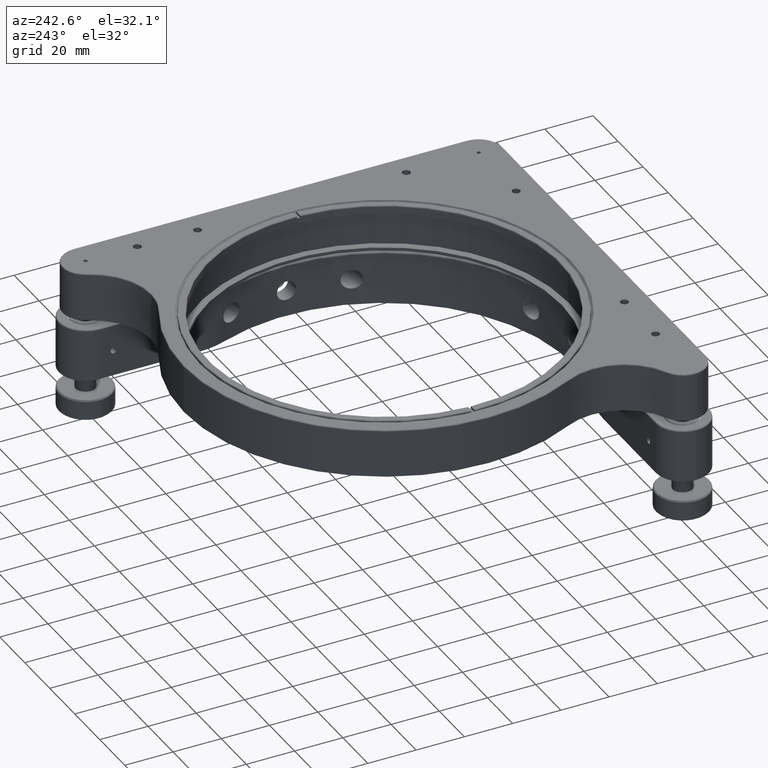
[diagram: clean part render]
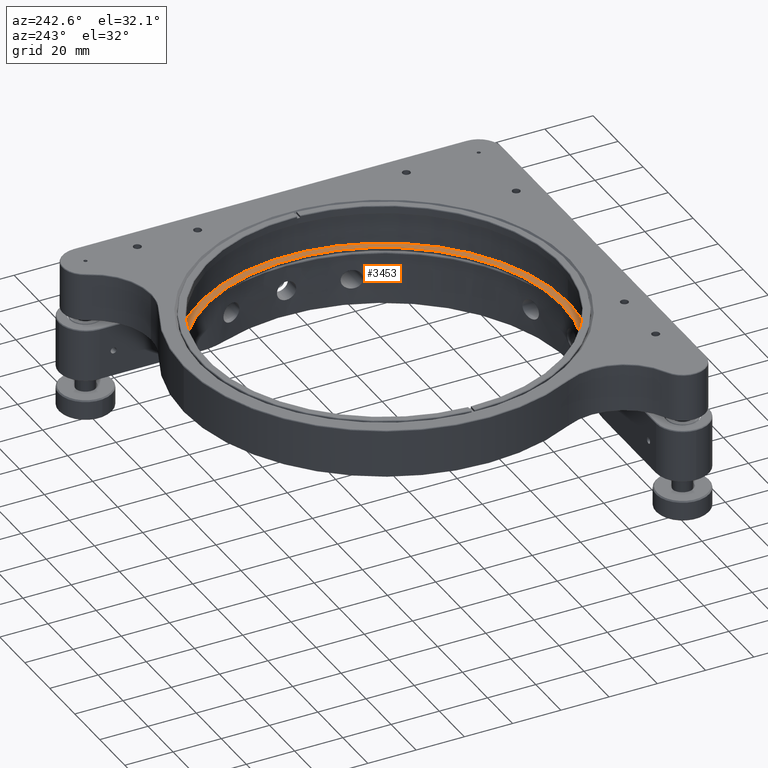
[diagram: same view with one face highlighted and labeled with its STEP entity id]
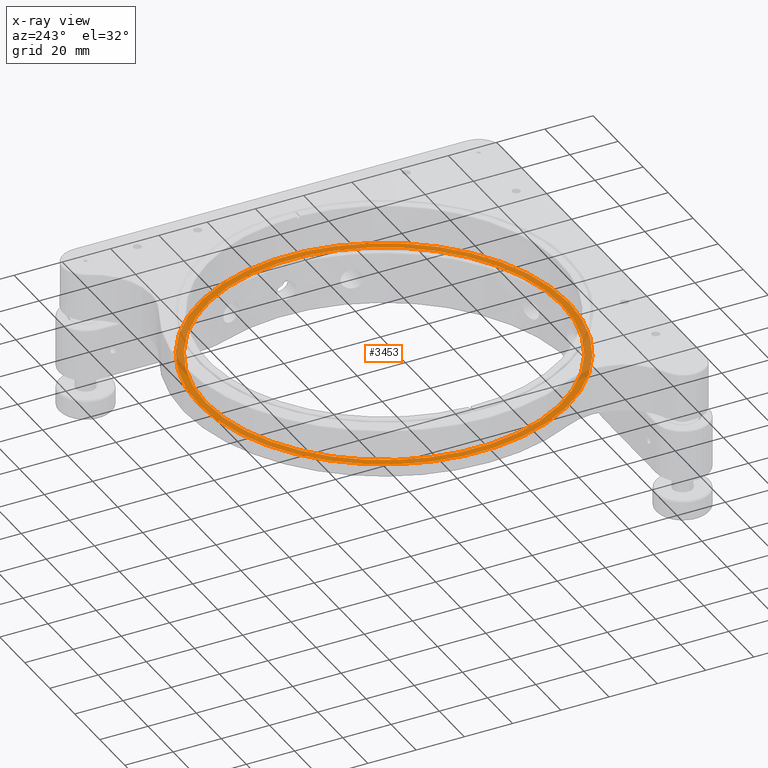
[diagram: x-ray of the same camera — body ghosted, the highlighted face saturated]
A machine part, auxiliary view. The second image highlights one B-rep face of the part: STEP entity #3453.
The next image is the same camera in x-ray: the body ghosted, the highlighted face saturated — about 15% of this face is hidden behind the body in this view.
In plain terms, the highlighted planar face has unit normal (0, 0, 1).
Its self-contained STEP definition (entity closure, byte-faithful):
#137 = DIRECTION ( 'NONE',  ( -6.383782391594643205E-16, 1.000000000000000000, 0.000000000000000000 ) ) ;
#279 = AXIS2_PLACEMENT_3D ( 'NONE', #12239, #16856, #137 ) ;
#430 = CIRCLE ( 'NONE', #11702, 73.70000000000038654 ) ;
#1478 = AXIS2_PLACEMENT_3D ( 'NONE', #4620, #10862, #13497 ) ;
#2557 = EDGE_CURVE ( 'NONE', #17104, #16991, #15584, .T. ) ;
#2600 = VERTEX_POINT ( 'NONE', #17078 ) ;
#3080 = DIRECTION ( 'NONE',  ( -6.383782391594643205E-16, 1.000000000000000000, 0.000000000000000000 ) ) ;
#3453 = ADVANCED_FACE ( 'NONE', ( #7548, #6228 ), #19909, .T. ) ;
#3843 = ORIENTED_EDGE ( 'NONE', *, *, #8780, .T. ) ;
#4255 = ORIENTED_EDGE ( 'NONE', *, *, #11060, .T. ) ;
#4620 = CARTESIAN_POINT ( 'NONE',  ( -6.696032648429030141E-13, 5.872038966181489995E-13, 15.99528137423859420 ) ) ;
#5085 = DIRECTION ( 'NONE',  ( -6.383782391594642219E-16, 1.000000000000000000, 0.000000000000000000 ) ) ;
#5300 = AXIS2_PLACEMENT_3D ( 'NONE', #6305, #12652, #5085 ) ;
#6228 = FACE_OUTER_BOUND ( 'NONE', #9579, .T. ) ;
#6305 = CARTESIAN_POINT ( 'NONE',  ( -6.696032648429030141E-13, 5.872038966181489995E-13, 15.99528137423859420 ) ) ;
#6387 = ORIENTED_EDGE ( 'NONE', *, *, #2557, .T. ) ;
#7235 = CARTESIAN_POINT ( 'NONE',  ( -6.206396531690838906E-13, -76.69999999999940599, 15.99528137423859420 ) ) ;
#7548 = FACE_BOUND ( 'NONE', #17672, .T. ) ;
#7695 = DIRECTION ( 'NONE',  ( -1.460576560598801768E-21, 2.733239376776539722E-36, -1.000000000000000000 ) ) ;
#7903 = CARTESIAN_POINT ( 'NONE',  ( -6.696032648429030141E-13, 5.872038966181489995E-13, 15.99528137423859420 ) ) ;
#7927 = ORIENTED_EDGE ( 'NONE', *, *, #17915, .T. ) ;
#8780 = EDGE_CURVE ( 'NONE', #13044, #2600, #18238, .T. ) ;
#9579 = EDGE_LOOP ( 'NONE', ( #6387, #7927 ) ) ;
#9752 = CARTESIAN_POINT ( 'NONE',  ( -7.279599160056057845E-13, 76.70000000000057128, 15.99528137423859420 ) ) ;
#10862 = DIRECTION ( 'NONE',  ( 1.460576560598801768E-21, 1.408690516110387961E-36, 1.000000000000000000 ) ) ;
#11060 = EDGE_CURVE ( 'NONE', #2600, #13044, #430, .T. ) ;
#11702 = AXIS2_PLACEMENT_3D ( 'NONE', #18245, #7695, #3080 ) ;
#12111 = CARTESIAN_POINT ( 'NONE',  ( -7.253253584488397825E-13, 73.70000000000098339, 15.99528137423859420 ) ) ;
#12239 = CARTESIAN_POINT ( 'NONE',  ( -6.782768822227870496E-13, 6.010816844259634563E-13, 15.99528137423859420 ) ) ;
#12652 = DIRECTION ( 'NONE',  ( 1.460576560598801768E-21, -2.733239376776539722E-36, 1.000000000000000000 ) ) ;
#13044 = VERTEX_POINT ( 'NONE', #12111 ) ;
#13497 = DIRECTION ( 'NONE',  ( -6.383782391594646163E-16, 1.000000000000000000, -4.762902231977379343E-37 ) ) ;
#15260 = DIRECTION ( 'NONE',  ( 1.460576560598801768E-21, -2.733239376776539722E-36, 1.000000000000000000 ) ) ;
#15393 = AXIS2_PLACEMENT_3D ( 'NONE', #7903, #15260, #15647 ) ;
#15584 = CIRCLE ( 'NONE', #5300, 76.70000000000037232 ) ;
#15647 = DIRECTION ( 'NONE',  ( -6.383782391594642219E-16, 1.000000000000000000, 0.000000000000000000 ) ) ;
#16856 = DIRECTION ( 'NONE',  ( -1.460576560598801768E-21, 2.733239376776539722E-36, -1.000000000000000000 ) ) ;
#16991 = VERTEX_POINT ( 'NONE', #9752 ) ;
#17078 = CARTESIAN_POINT ( 'NONE',  ( -6.402540537827964397E-13, -73.69999999999942020, 15.99528137423859420 ) ) ;
#17104 = VERTEX_POINT ( 'NONE', #7235 ) ;
#17672 = EDGE_LOOP ( 'NONE', ( #3843, #4255 ) ) ;
#17915 = EDGE_CURVE ( 'NONE', #16991, #17104, #18282, .T. ) ;
#18238 = CIRCLE ( 'NONE', #279, 73.70000000000038654 ) ;
#18245 = CARTESIAN_POINT ( 'NONE',  ( -6.782768822227870496E-13, 6.010816844259634563E-13, 15.99528137423859420 ) ) ;
#18282 = CIRCLE ( 'NONE', #15393, 76.70000000000037232 ) ;
#19909 = PLANE ( 'NONE',  #1478 ) ;